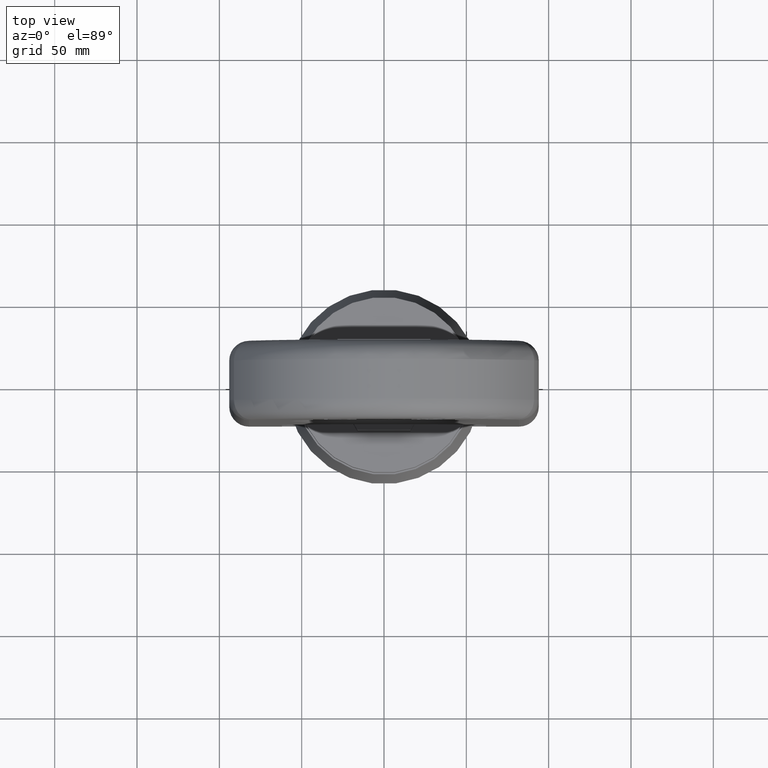
[diagram: clean part render]
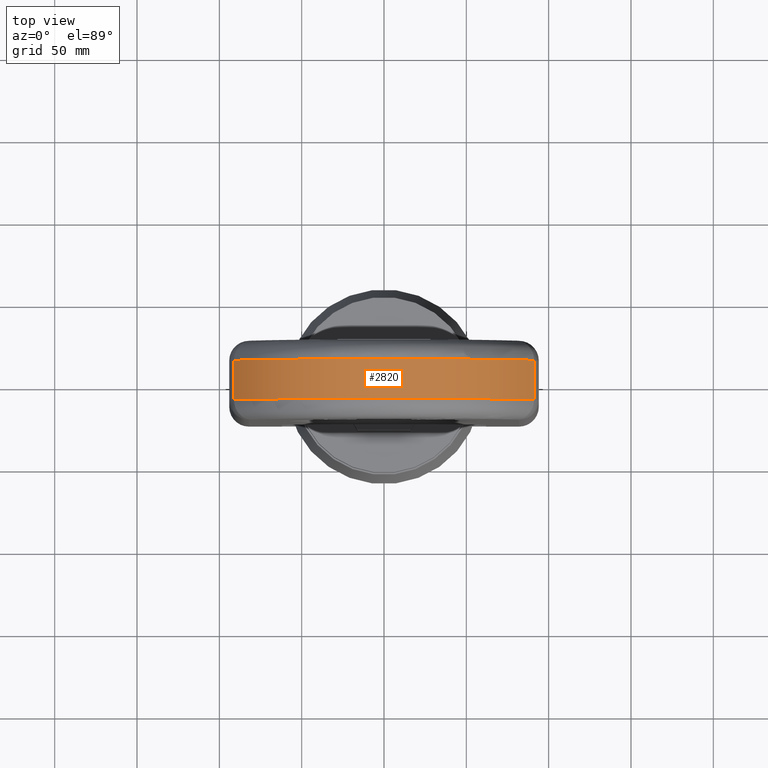
[diagram: same view with one face highlighted and labeled with its STEP entity id]
A machine part, top view. The second image highlights one B-rep face of the part: STEP entity #2820.
In plain terms, the highlighted cylindrical surface (partial cylindrical patch) has radius 103.633 mm, axis along (0, 1, 0).
Its self-contained STEP definition (entity closure, byte-faithful):
#1870=LINE('',#7760,#2178);
#1871=LINE('',#7765,#2179);
#2178=VECTOR('',#6359,1.);
#2179=VECTOR('',#6362,1.);
#2460=FACE_OUTER_BOUND('',#3198,.T.);
#2820=ADVANCED_FACE('',(#2460),#3046,.T.);
#3046=CYLINDRICAL_SURFACE('',#5906,103.633333333333);
#3198=EDGE_LOOP('',(#3739,#3740,#3741,#3742));
#3739=ORIENTED_EDGE('',*,*,#5368,.T.);
#3740=ORIENTED_EDGE('',*,*,#5369,.T.);
#3741=ORIENTED_EDGE('',*,*,#5370,.T.);
#3742=ORIENTED_EDGE('',*,*,#5371,.T.);
#4927=VERTEX_POINT('',#7761);
#4928=VERTEX_POINT('',#7762);
#4929=VERTEX_POINT('',#7764);
#4930=VERTEX_POINT('',#7766);
#5368=EDGE_CURVE('',#4927,#4928,#1870,.T.);
#5369=EDGE_CURVE('',#4928,#4929,#5791,.T.);
#5370=EDGE_CURVE('',#4929,#4930,#1871,.T.);
#5371=EDGE_CURVE('',#4930,#4927,#5792,.T.);
#5791=CIRCLE('',#5904,103.633333333333);
#5792=CIRCLE('',#5905,103.633333333333);
#5904=AXIS2_PLACEMENT_3D('',#7763,#6360,#6361);
#5905=AXIS2_PLACEMENT_3D('',#7767,#6363,#6364);
#5906=AXIS2_PLACEMENT_3D('',#7768,#6365,#6366);
#6359=DIRECTION('',(0.,1.,0.));
#6360=DIRECTION('',(-2.34291072916505E-15,-1.,0.));
#6361=DIRECTION('',(-1.,2.34346690225236E-15,0.));
#6362=DIRECTION('',(0.,-1.,0.));
#6363=DIRECTION('',(0.,1.,0.));
#6364=DIRECTION('',(0.,0.,-1.));
#6365=DIRECTION('',(0.,1.,0.));
#6366=DIRECTION('',(0.,0.,1.));
#7760=CARTESIAN_POINT('',(91.0966931770616,-24.,276.775777870797));
#7761=CARTESIAN_POINT('',(91.0966931770616,-12.,276.775777870797));
#7762=CARTESIAN_POINT('',(91.0966931770616,11.9999999999998,276.775777870797));
#7763=CARTESIAN_POINT('',(0.,12.,227.366666666667));
#7764=CARTESIAN_POINT('',(-91.0966931770616,12.0000000000002,276.775777870797));
#7765=CARTESIAN_POINT('',(-91.0966931770616,-24.,276.775777870797));
#7766=CARTESIAN_POINT('',(-91.0966931770616,-12.,276.775777870797));
#7767=CARTESIAN_POINT('',(0.,-12.,227.366666666667));
#7768=CARTESIAN_POINT('',(0.,-24.,227.366666666667));